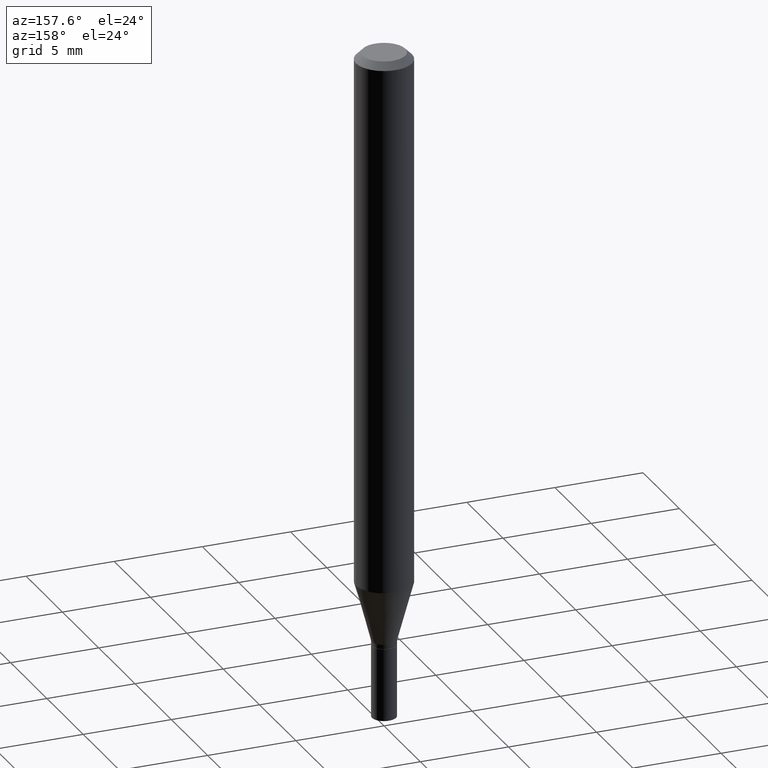
[diagram: clean part render]
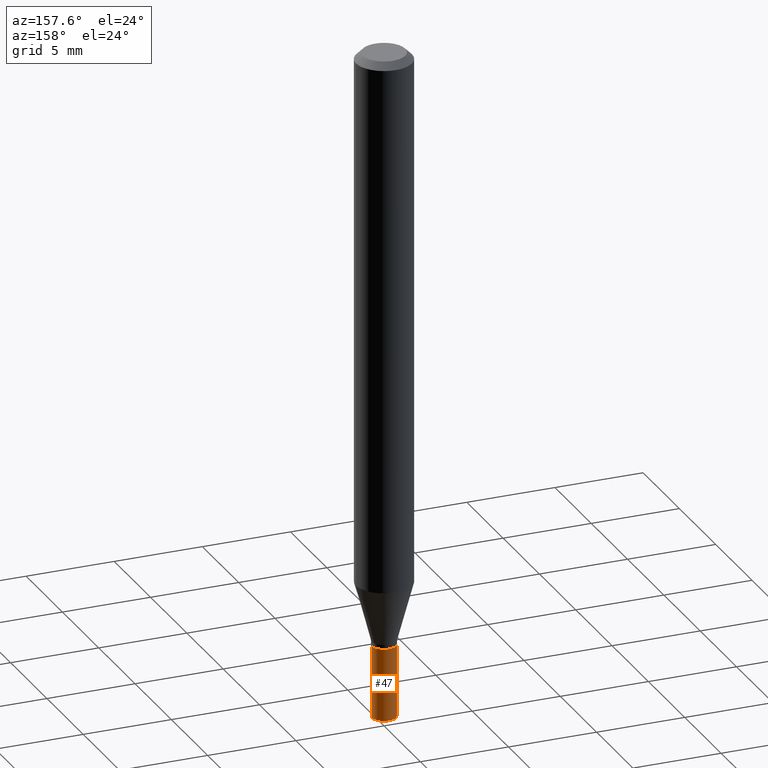
[diagram: same view with one face highlighted and labeled with its STEP entity id]
A machine part, auxiliary view. The second image highlights one B-rep face of the part: STEP entity #47.
In plain terms, the highlighted cylindrical surface (edge-blend (fillet) strip) has radius 0.6858 mm, axis along (-0, 0, 1).
Its self-contained STEP definition (entity closure, byte-faithful):
#11 = ORIENTED_EDGE ( 'NONE', *, *, #101, .F. ) ;
#13 = AXIS2_PLACEMENT_3D ( 'NONE', #224, #446, #450 ) ;
#16 = DIRECTION ( 'NONE',  ( 1.000000000000000000, -6.982962677686261189E-15, 0.000000000000000000 ) ) ;
#38 = DIRECTION ( 'NONE',  ( -2.445468806185136877E-29, 3.491481338843145188E-15, 1.000000000000000000 ) ) ;
#40 = CARTESIAN_POINT ( 'NONE',  ( 0.02699999999999999969, -1.885399922975291894E-16, 1.316567729464902510E-30 ) ) ;
#41 = FACE_OUTER_BOUND ( 'NONE', #152, .T. ) ;
#47 = ADVANCED_FACE ( 'NONE', ( #41 ), #381, .T. ) ;
#87 = CARTESIAN_POINT ( 'NONE',  ( 0.02699999999999999969, -5.425762000562247662E-15, -1.500000000000000222 ) ) ;
#92 = DIRECTION ( 'NONE',  ( -2.445468806185136597E-29, 3.491481338843145583E-15, 1.000000000000000000 ) ) ;
#101 = EDGE_CURVE ( 'NONE', #260, #250, #336, .T. ) ;
#121 = EDGE_CURVE ( 'NONE', #219, #339, #305, .T. ) ;
#152 = EDGE_LOOP ( 'NONE', ( #261, #365, #11, #404 ) ) ;
#157 = AXIS2_PLACEMENT_3D ( 'NONE', #448, #92, #16 ) ;
#161 = CARTESIAN_POINT ( 'NONE',  ( -0.02699999999999999969, -4.762565481163196334E-15, -1.338000000000000078 ) ) ;
#180 = EDGE_CURVE ( 'NONE', #219, #260, #300, .T. ) ;
#201 = EDGE_CURVE ( 'NONE', #339, #250, #369, .T. ) ;
#215 = CARTESIAN_POINT ( 'NONE',  ( 0.02699999999999999969, -4.860142023669657629E-15, -1.338000000000000078 ) ) ;
#219 = VERTEX_POINT ( 'NONE', #87 ) ;
#224 = CARTESIAN_POINT ( 'NONE',  ( 3.668203209277704895E-29, -5.237222008264718177E-15, -1.500000000000000222 ) ) ;
#250 = VERTEX_POINT ( 'NONE', #161 ) ;
#260 = VERTEX_POINT ( 'NONE', #215 ) ;
#261 = ORIENTED_EDGE ( 'NONE', *, *, #121, .T. ) ;
#268 = CARTESIAN_POINT ( 'NONE',  ( 0.000000000000000000, 0.000000000000000000, 0.000000000000000000 ) ) ;
#269 = DIRECTION ( 'NONE',  ( -2.445468806185136597E-29, 3.491481338843145583E-15, 1.000000000000000000 ) ) ;
#279 = CARTESIAN_POINT ( 'NONE',  ( -0.02699999999999999969, -4.762565481163196334E-15, -1.500000000000000222 ) ) ;
#300 = LINE ( 'NONE', #40, #437 ) ;
#305 = CIRCLE ( 'NONE', #13, 0.02699999999999999969 ) ;
#329 = VECTOR ( 'NONE', #38, 39.37007874015748143 ) ;
#336 = CIRCLE ( 'NONE', #157, 0.02699999999999999969 ) ;
#339 = VERTEX_POINT ( 'NONE', #279 ) ;
#365 = ORIENTED_EDGE ( 'NONE', *, *, #201, .T. ) ;
#369 = LINE ( 'NONE', #420, #329 ) ;
#381 = CYLINDRICAL_SURFACE ( 'NONE', #444, 0.02699999999999999969 ) ;
#404 = ORIENTED_EDGE ( 'NONE', *, *, #180, .F. ) ;
#420 = CARTESIAN_POINT ( 'NONE',  ( -0.02699999999999999969, 1.918465386552270480E-16, -1.328112474368824466E-30 ) ) ;
#422 = DIRECTION ( 'NONE',  ( 1.000000000000000000, -6.982962677686266711E-15, 4.876176775795935232E-29 ) ) ;
#437 = VECTOR ( 'NONE', #439, 39.37007874015748143 ) ;
#439 = DIRECTION ( 'NONE',  ( -2.445468806185136877E-29, 3.491481338843145188E-15, 1.000000000000000000 ) ) ;
#444 = AXIS2_PLACEMENT_3D ( 'NONE', #268, #269, #422 ) ;
#446 = DIRECTION ( 'NONE',  ( -2.445468806185136597E-29, 3.491481338843145583E-15, 1.000000000000000000 ) ) ;
#448 = CARTESIAN_POINT ( 'NONE',  ( 3.272037262675712888E-29, -4.671602031372128143E-15, -1.338000000000000078 ) ) ;
#450 = DIRECTION ( 'NONE',  ( 1.000000000000000000, -6.982962677686261189E-15, 0.000000000000000000 ) ) ;